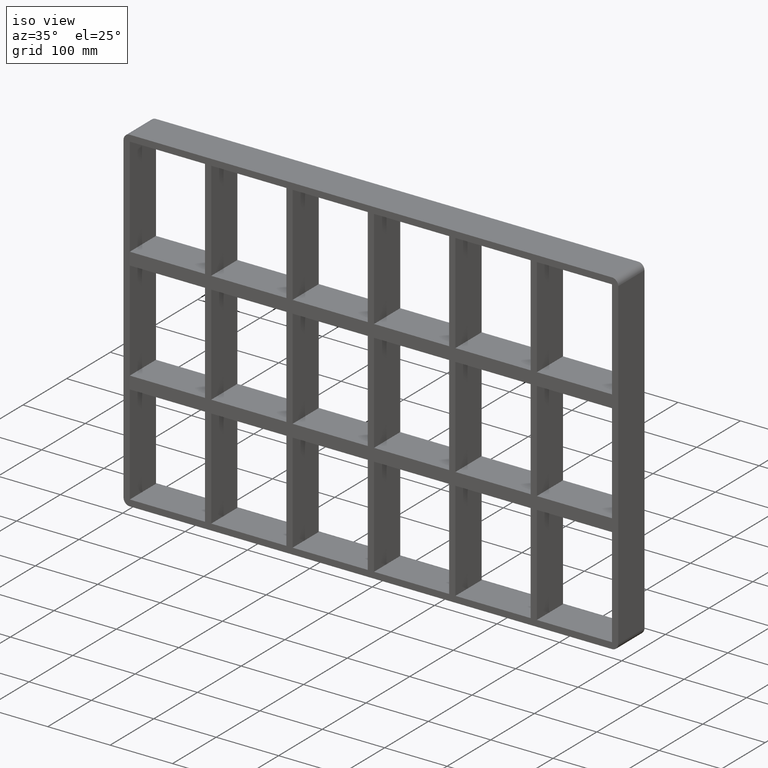
[diagram: clean part render]
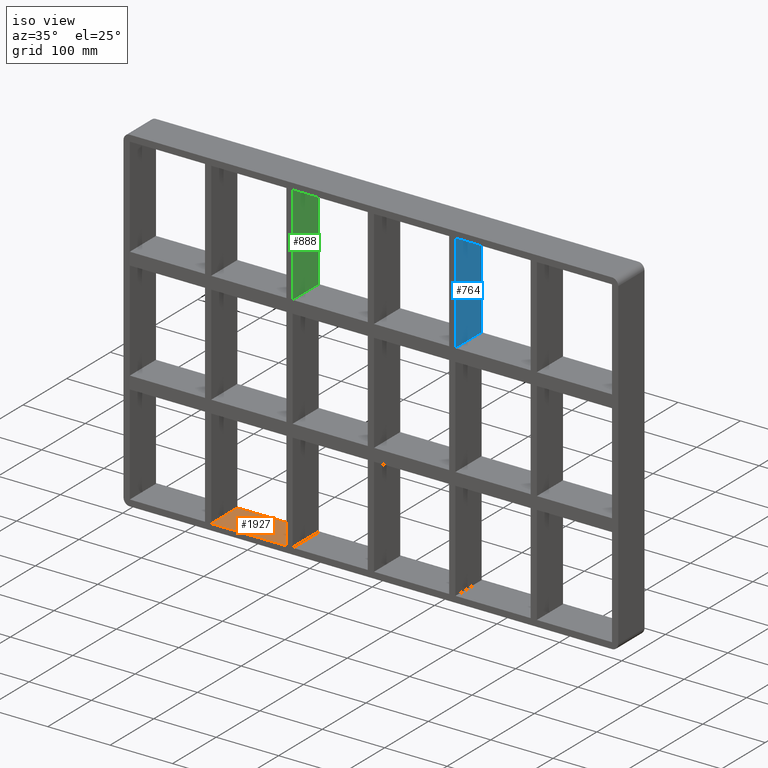
[diagram: same view with three faces highlighted in distinct colors, each labeled with its STEP entity id]
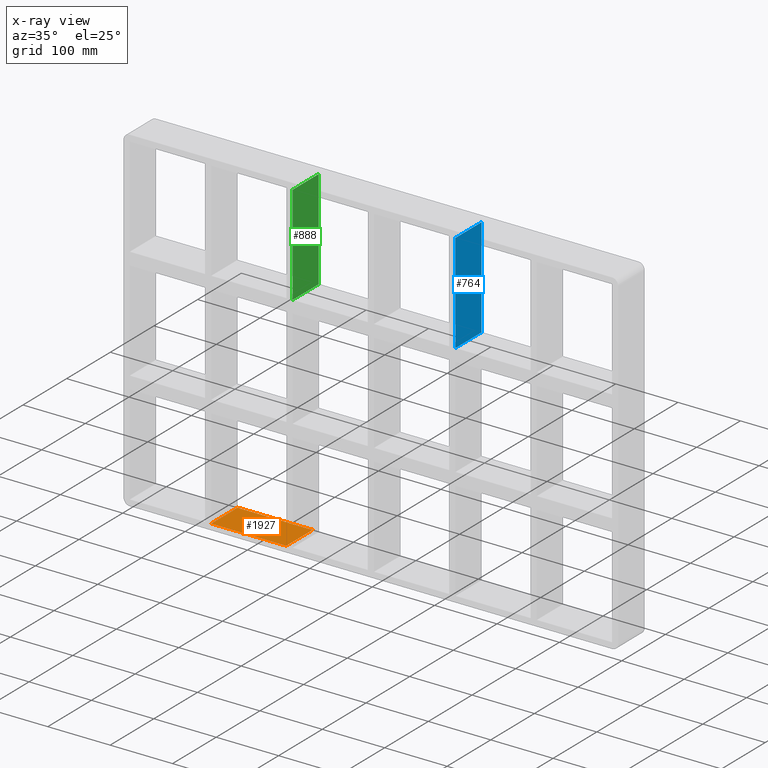
[diagram: x-ray of the same camera — body ghosted, the three highlighted faces saturated]
A machine part, iso view with three faces highlighted in distinct colors.
The next image is the same camera in x-ray (body ghosted, the three faces saturated) — at least one of them is partly hidden behind the body in this view.
Their STEP definitions:

[orange] entity #1927 — the highlighted planar face has unit normal (0, 0, -1).
#1282=CARTESIAN_POINT('',(-135.50000000000128,57.0,-259.25));
#1283=VERTEX_POINT('',#1282);
#1300=CARTESIAN_POINT('',(-256.00000000000364,57.0,-259.24999999998414));
#1301=VERTEX_POINT('',#1300);
#1308=CARTESIAN_POINT('',(-256.00000000000358,57.0,-259.25));
#1309=DIRECTION('',(1.0,0.0,0.0));
#1310=VECTOR('',#1309,120.50000000000227);
#1311=LINE('',#1308,#1310);
#1312=EDGE_CURVE('',#1301,#1283,#1311,.T.);
#1832=CARTESIAN_POINT('',(-135.50000000000128,-3.0,-259.25));
#1833=VERTEX_POINT('',#1832);
#1834=CARTESIAN_POINT('',(-135.50000000000131,-3.0,-259.25));
#1835=DIRECTION('',(0.0,1.0,0.0));
#1836=VECTOR('',#1835,60.000000000000007);
#1837=LINE('',#1834,#1836);
#1838=EDGE_CURVE('',#1833,#1283,#1837,.T.);
#1904=CARTESIAN_POINT('',(386.50000000000011,0.0,-259.25));
#1905=DIRECTION('',(0.0,0.0,-1.0));
#1906=DIRECTION('',(-1.0,0.0,0.0));
#1907=AXIS2_PLACEMENT_3D('',#1904,#1905,#1906);
#1908=PLANE('',#1907);
#1909=ORIENTED_EDGE('',*,*,#1838,.T.);
#1910=ORIENTED_EDGE('',*,*,#1312,.F.);
#1911=CARTESIAN_POINT('',(-256.00000000000364,-3.0,-259.24999999998414));
#1912=VERTEX_POINT('',#1911);
#1913=CARTESIAN_POINT('',(-256.00000000000358,57.000000000000007,-259.25));
#1914=DIRECTION('',(0.0,-1.0,0.0));
#1915=VECTOR('',#1914,60.000000000000007);
#1916=LINE('',#1913,#1915);
#1917=EDGE_CURVE('',#1301,#1912,#1916,.T.);
#1918=ORIENTED_EDGE('',*,*,#1917,.T.);
#1919=CARTESIAN_POINT('',(-135.50000000000131,-3.0,-259.25));
#1920=DIRECTION('',(-1.0,0.0,0.0));
#1921=VECTOR('',#1920,120.50000000000227);
#1922=LINE('',#1919,#1921);
#1923=EDGE_CURVE('',#1833,#1912,#1922,.T.);
#1924=ORIENTED_EDGE('',*,*,#1923,.F.);
#1925=EDGE_LOOP('',(#1909,#1910,#1918,#1924));
#1926=FACE_OUTER_BOUND('',#1925,.T.);
#1927=ADVANCED_FACE('',(#1926),#1908,.F.);

[blue] entity #764 — the highlighted planar face has unit normal (1, 0, 0).
#523=CARTESIAN_POINT('',(135.49999999999642,57.0,99.750000000000085));
#524=VERTEX_POINT('',#523);
#531=CARTESIAN_POINT('',(135.49999999999642,-3.0,99.750000000000085));
#532=VERTEX_POINT('',#531);
#533=CARTESIAN_POINT('',(135.49999999999642,-3.0,99.750000000000085));
#534=DIRECTION('',(0.0,1.0,0.0));
#535=VECTOR('',#534,60.0);
#536=LINE('',#533,#535);
#537=EDGE_CURVE('',#532,#524,#536,.T.);
#734=CARTESIAN_POINT('',(135.49999999999642,-3.0,259.25000000000006));
#735=DIRECTION('',(1.0,0.0,0.0));
#736=DIRECTION('',(0.0,0.0,-1.0));
#737=AXIS2_PLACEMENT_3D('',#734,#735,#736);
#738=PLANE('',#737);
#739=ORIENTED_EDGE('',*,*,#537,.T.);
#740=CARTESIAN_POINT('',(135.49999999999642,57.0,259.25000000000006));
#741=VERTEX_POINT('',#740);
#742=CARTESIAN_POINT('',(135.49999999999642,57.0,259.25000000000006));
#743=DIRECTION('',(0.0,0.0,-1.0));
#744=VECTOR('',#743,159.49999999999994);
#745=LINE('',#742,#744);
#746=EDGE_CURVE('',#741,#524,#745,.T.);
#747=ORIENTED_EDGE('',*,*,#746,.F.);
#748=CARTESIAN_POINT('',(135.49999999999642,-3.0,259.25000000000006));
#749=VERTEX_POINT('',#748);
#750=CARTESIAN_POINT('',(135.49999999999642,-3.0,259.25000000000006));
#751=DIRECTION('',(0.0,1.0,0.0));
#752=VECTOR('',#751,60.000000000000007);
#753=LINE('',#750,#752);
#754=EDGE_CURVE('',#749,#741,#753,.T.);
#755=ORIENTED_EDGE('',*,*,#754,.F.);
#756=CARTESIAN_POINT('',(135.49999999999642,-3.0,259.25000000000006));
#757=DIRECTION('',(0.0,0.0,-1.0));
#758=VECTOR('',#757,159.49999999999994);
#759=LINE('',#756,#758);
#760=EDGE_CURVE('',#749,#532,#759,.T.);
#761=ORIENTED_EDGE('',*,*,#760,.T.);
#762=EDGE_LOOP('',(#739,#747,#755,#761));
#763=FACE_OUTER_BOUND('',#762,.T.);
#764=ADVANCED_FACE('',(#763),#738,.T.);

[green] entity #888 — the highlighted planar face has unit normal (1, 0, 0).
#443=CARTESIAN_POINT('',(-125.50000000000364,57.0,99.750000000000085));
#444=VERTEX_POINT('',#443);
#451=CARTESIAN_POINT('',(-125.50000000000364,-3.0,99.750000000000085));
#452=VERTEX_POINT('',#451);
#453=CARTESIAN_POINT('',(-125.50000000000364,-3.0,99.750000000000085));
#454=DIRECTION('',(0.0,1.0,0.0));
#455=VECTOR('',#454,60.0);
#456=LINE('',#453,#455);
#457=EDGE_CURVE('',#452,#444,#456,.T.);
#858=CARTESIAN_POINT('',(-125.50000000000364,-3.0,259.25000000000006));
#859=DIRECTION('',(1.0,0.0,0.0));
#860=DIRECTION('',(0.0,0.0,-1.0));
#861=AXIS2_PLACEMENT_3D('',#858,#859,#860);
#862=PLANE('',#861);
#863=ORIENTED_EDGE('',*,*,#457,.T.);
#864=CARTESIAN_POINT('',(-125.50000000000364,57.0,259.25000000000006));
#865=VERTEX_POINT('',#864);
#866=CARTESIAN_POINT('',(-125.50000000000364,57.0,259.25000000000006));
#867=DIRECTION('',(0.0,0.0,-1.0));
#868=VECTOR('',#867,159.49999999999994);
#869=LINE('',#866,#868);
#870=EDGE_CURVE('',#865,#444,#869,.T.);
#871=ORIENTED_EDGE('',*,*,#870,.F.);
#872=CARTESIAN_POINT('',(-125.50000000000364,-3.0,259.25000000000006));
#873=VERTEX_POINT('',#872);
#874=CARTESIAN_POINT('',(-125.50000000000365,-3.0,259.25000000000006));
#875=DIRECTION('',(0.0,1.0,0.0));
#876=VECTOR('',#875,60.000000000000007);
#877=LINE('',#874,#876);
#878=EDGE_CURVE('',#873,#865,#877,.T.);
#879=ORIENTED_EDGE('',*,*,#878,.F.);
#880=CARTESIAN_POINT('',(-125.50000000000364,-3.0,259.25000000000006));
#881=DIRECTION('',(0.0,0.0,-1.0));
#882=VECTOR('',#881,159.49999999999994);
#883=LINE('',#880,#882);
#884=EDGE_CURVE('',#873,#452,#883,.T.);
#885=ORIENTED_EDGE('',*,*,#884,.T.);
#886=EDGE_LOOP('',(#863,#871,#879,#885));
#887=FACE_OUTER_BOUND('',#886,.T.);
#888=ADVANCED_FACE('',(#887),#862,.T.);